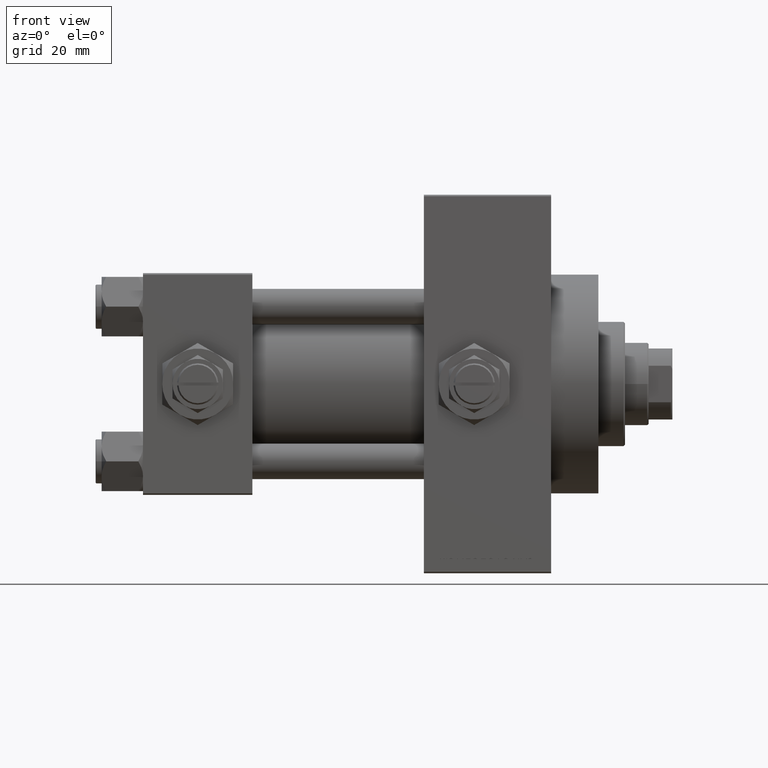
[diagram: clean part render]
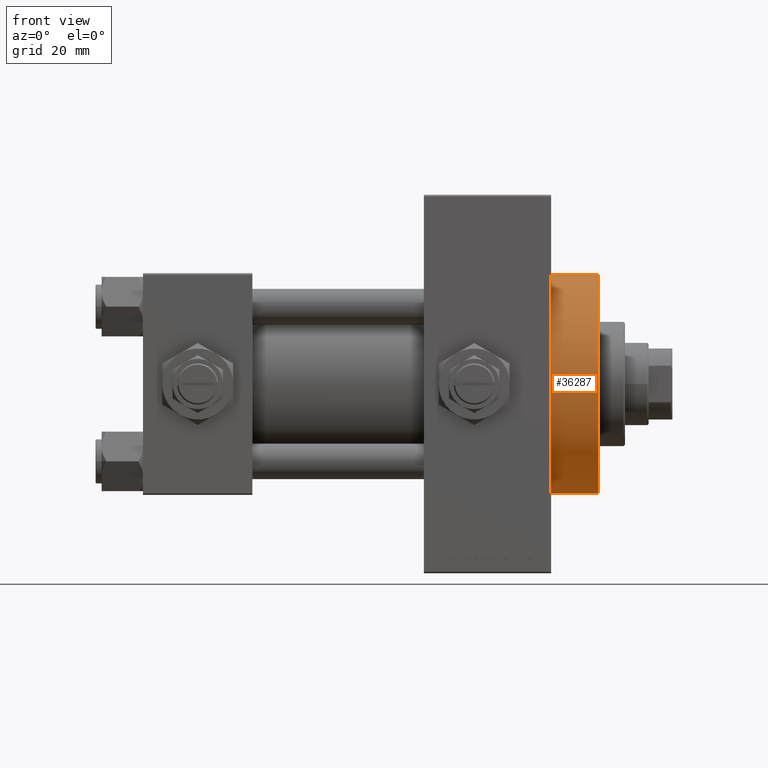
[diagram: same view with one face highlighted and labeled with its STEP entity id]
A machine part, front view. The second image highlights one B-rep face of the part: STEP entity #36287.
In plain terms, the highlighted cylindrical surface (partial cylindrical patch) has radius 37 mm, axis along (-1, -0, -0).
Its self-contained STEP definition (entity closure, byte-faithful):
#3007 = CARTESIAN_POINT ( 'NONE',  ( 138.0000000000000000, 0.000000000000000000, 0.000000000000000000 ) ) ;
#4791 = CARTESIAN_POINT ( 'NONE',  ( 154.0000000000000284, 4.531193156845206793E-15, -37.00000000000000000 ) ) ;
#8621 = AXIS2_PLACEMENT_3D ( 'NONE', #41579, #18934, #34116 ) ;
#8933 = DIRECTION ( 'NONE',  ( 0.000000000000000000, 0.000000000000000000, 1.000000000000000000 ) ) ;
#10979 = DIRECTION ( 'NONE',  ( 1.000000000000000000, 0.000000000000000000, 0.000000000000000000 ) ) ;
#10998 = VECTOR ( 'NONE', #36683, 1000.000000000000000 ) ;
#11280 = EDGE_CURVE ( 'NONE', #29472, #45091, #25724, .T. ) ;
#13642 = DIRECTION ( 'NONE',  ( -1.000000000000000000, -0.000000000000000000, -0.000000000000000000 ) ) ;
#13708 = VECTOR ( 'NONE', #42406, 1000.000000000000000 ) ;
#16581 = CIRCLE ( 'NONE', #8621, 37.00000000000000000 ) ;
#16904 = ORIENTED_EDGE ( 'NONE', *, *, #35304, .T. ) ;
#17526 = CARTESIAN_POINT ( 'NONE',  ( 154.0000000000000284, 0.000000000000000000, 37.00000000000000000 ) ) ;
#17799 = AXIS2_PLACEMENT_3D ( 'NONE', #3007, #10979, #17969 ) ;
#17820 = CARTESIAN_POINT ( 'NONE',  ( 154.0000000000000284, 4.531193156845206793E-15, -37.00000000000000000 ) ) ;
#17969 = DIRECTION ( 'NONE',  ( 0.000000000000000000, 0.000000000000000000, -1.000000000000000000 ) ) ;
#18375 = CARTESIAN_POINT ( 'NONE',  ( 138.0000000000000000, 0.000000000000000000, 37.00000000000000000 ) ) ;
#18489 = CARTESIAN_POINT ( 'NONE',  ( 154.0000000000000284, 0.000000000000000000, 37.00000000000000000 ) ) ;
#18934 = DIRECTION ( 'NONE',  ( 1.000000000000000000, 0.000000000000000000, 0.000000000000000000 ) ) ;
#21130 = FACE_OUTER_BOUND ( 'NONE', #25203, .T. ) ;
#23244 = LINE ( 'NONE', #4791, #13708 ) ;
#25203 = EDGE_LOOP ( 'NONE', ( #33868, #34541, #16904, #37371 ) ) ;
#25724 = CIRCLE ( 'NONE', #17799, 37.00000000000000000 ) ;
#28965 = CARTESIAN_POINT ( 'NONE',  ( 138.0000000000000000, 4.531193156845206793E-15, -37.00000000000000000 ) ) ;
#29472 = VERTEX_POINT ( 'NONE', #18375 ) ;
#33868 = ORIENTED_EDGE ( 'NONE', *, *, #41391, .F. ) ;
#34042 = LINE ( 'NONE', #17526, #10998 ) ;
#34116 = DIRECTION ( 'NONE',  ( 0.000000000000000000, 0.000000000000000000, -1.000000000000000000 ) ) ;
#34541 = ORIENTED_EDGE ( 'NONE', *, *, #35844, .F. ) ;
#35304 = EDGE_CURVE ( 'NONE', #39183, #29472, #34042, .T. ) ;
#35844 = EDGE_CURVE ( 'NONE', #39183, #46780, #16581, .T. ) ;
#36287 = ADVANCED_FACE ( 'NONE', ( #21130 ), #47518, .T. ) ;
#36303 = CARTESIAN_POINT ( 'NONE',  ( 154.0000000000000284, 0.000000000000000000, 0.000000000000000000 ) ) ;
#36683 = DIRECTION ( 'NONE',  ( -1.000000000000000000, -0.000000000000000000, -0.000000000000000000 ) ) ;
#37371 = ORIENTED_EDGE ( 'NONE', *, *, #11280, .T. ) ;
#39183 = VERTEX_POINT ( 'NONE', #18489 ) ;
#39677 = AXIS2_PLACEMENT_3D ( 'NONE', #36303, #13642, #8933 ) ;
#41391 = EDGE_CURVE ( 'NONE', #46780, #45091, #23244, .T. ) ;
#41579 = CARTESIAN_POINT ( 'NONE',  ( 154.0000000000000284, 0.000000000000000000, 0.000000000000000000 ) ) ;
#42406 = DIRECTION ( 'NONE',  ( -1.000000000000000000, -0.000000000000000000, -0.000000000000000000 ) ) ;
#45091 = VERTEX_POINT ( 'NONE', #28965 ) ;
#46780 = VERTEX_POINT ( 'NONE', #17820 ) ;
#47518 = CYLINDRICAL_SURFACE ( 'NONE', #39677, 37.00000000000000000 ) ;